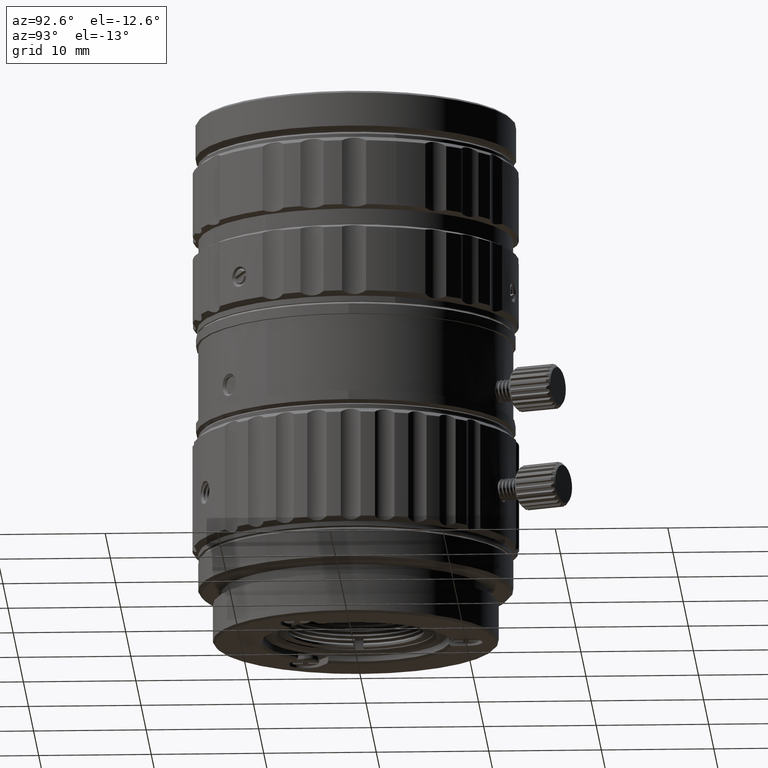
[diagram: clean part render]
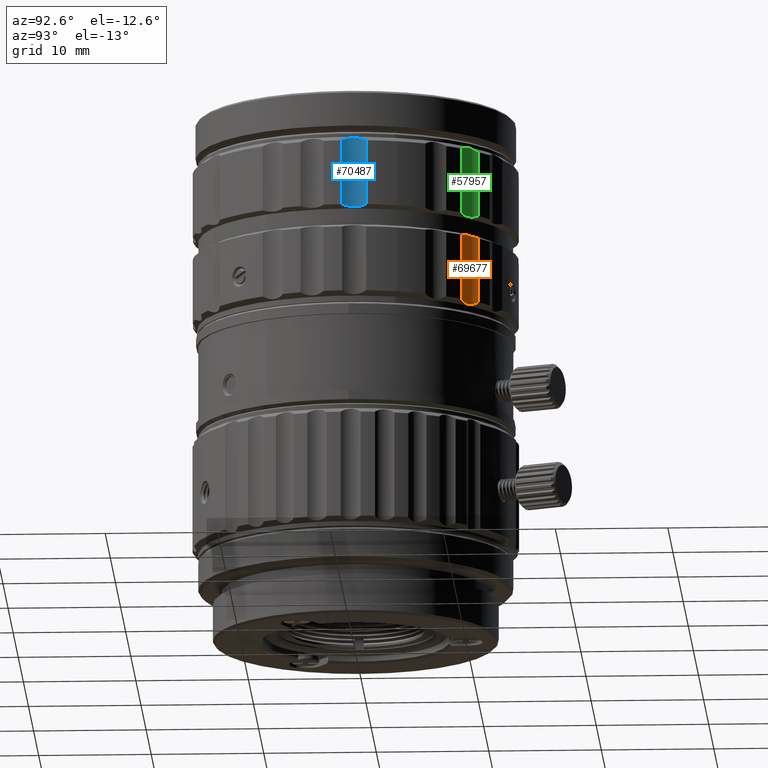
[diagram: same view with three faces highlighted in distinct colors, each labeled with its STEP entity id]
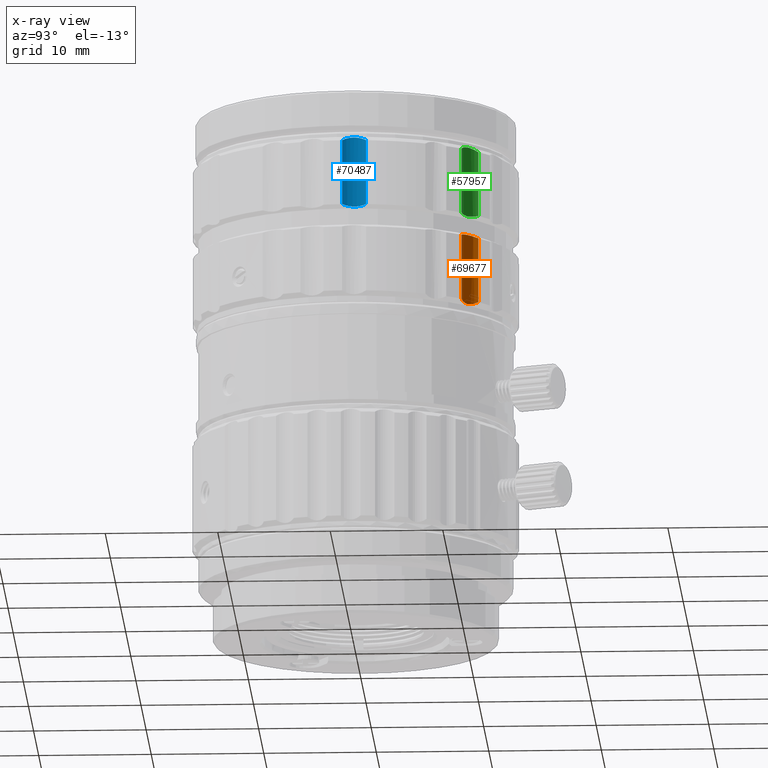
[diagram: x-ray of the same camera — body ghosted, the three highlighted faces saturated]
A machine part, auxiliary view with three faces highlighted in distinct colors.
The next image is the same camera in x-ray (body ghosted, the three faces saturated) — at least one of them is partly hidden behind the body in this view.
Their STEP definitions:

[orange] entity #69677 — the highlighted cylindrical surface (edge-blend (fillet) strip) has radius 2.3 mm, axis along (0, 0, -1).
#324 = VECTOR ( 'NONE', #21218, 1000.000000000000000 ) ;
#2512 = VERTEX_POINT ( 'NONE', #12099 ) ;
#3356 = CARTESIAN_POINT ( 'NONE',  ( 10.64048083858719984, 9.850389206707079737, 27.37993545904980053 ) ) ;
#4376 = CARTESIAN_POINT ( 'NONE',  ( 10.64048083858719984, 9.850389206707079737, 27.37993545904980053 ) ) ;
#5066 = EDGE_CURVE ( 'NONE', #66908, #22117, #49663, .T. ) ;
#8282 = CARTESIAN_POINT ( 'NONE',  ( 9.682695421883179776, 10.38373891436630103, 27.07734155002420096 ) ) ;
#8583 = VERTEX_POINT ( 'NONE', #19116 ) ;
#8626 = CARTESIAN_POINT ( 'NONE',  ( 11.25297294102719903, 12.06733607671860042, 26.97993545905000090 ) ) ;
#11030 = CARTESIAN_POINT ( 'NONE',  ( 10.27357382312537837, 9.951757287441253652, 33.30695144448599621 ) ) ;
#12099 = CARTESIAN_POINT ( 'NONE',  ( 9.084151731427891008, 11.30168957812460029, 27.37993545904990000 ) ) ;
#15153 = CARTESIAN_POINT ( 'NONE',  ( 10.57577800585679917, 9.868265130840519817, 27.34459860099579842 ) ) ;
#15963 = CARTESIAN_POINT ( 'NONE',  ( 9.815930951724949338, 10.26864245110160034, 27.08511752826249719 ) ) ;
#17530 = CARTESIAN_POINT ( 'NONE',  ( 9.944991668092134418, 10.14199976667624981, 33.36463608381595947 ) ) ;
#18327 = CARTESIAN_POINT ( 'NONE',  ( 9.422414956937375408, 10.62970177551355455, 33.36399240107564168 ) ) ;
#19101 = EDGE_CURVE ( 'NONE', #8583, #66908, #54398, .T. ) ;
#19116 = CARTESIAN_POINT ( 'NONE',  ( 9.084151731429479071, 11.30168957812569985, 33.19126032445500130 ) ) ;
#19566 = CARTESIAN_POINT ( 'NONE',  ( 10.64048083858740057, 9.850389206706079648, 33.19126032445500130 ) ) ;
#21218 = DIRECTION ( 'NONE',  ( 1.102461274316499896E-13, -1.078025220529050062E-13, -1.000000000000000000 ) ) ;
#22117 = VERTEX_POINT ( 'NONE', #4376 ) ;
#26455 = ORIENTED_EDGE ( 'NONE', *, *, #5066, .T. ) ;
#30918 = CARTESIAN_POINT ( 'NONE',  ( 9.084151731429479071, 11.30168957812569985, 33.19126032445500130 ) ) ;
#30931 = DIRECTION ( 'NONE',  ( -1.407924342681259986E-13, 1.308450464266729913E-13, -1.000000000000000000 ) ) ;
#31829 = AXIS2_PLACEMENT_3D ( 'NONE', #8626, #45643, #39552 ) ;
#33081 = CARTESIAN_POINT ( 'NONE',  ( 9.084151731427891008, 11.30168957812460029, 27.37993545904990000 ) ) ;
#33468 = CARTESIAN_POINT ( 'NONE',  ( 9.338082928344951128, 10.78897225163550111, 27.14848329727709952 ) ) ;
#33870 = CARTESIAN_POINT ( 'NONE',  ( 9.558840121515839172, 10.50839708561340125, 27.08512906533769993 ) ) ;
#34215 = CARTESIAN_POINT ( 'NONE',  ( 9.084151731427891008, 11.30168957812460029, 33.19126032445500130 ) ) ;
#34670 = CARTESIAN_POINT ( 'NONE',  ( 10.27489818911730168, 9.982868010376130030, 27.20547125498089969 ) ) ;
#39188 = CARTESIAN_POINT ( 'NONE',  ( 10.45011928971669946, 9.909104674780971678, 27.28081095013019919 ) ) ;
#39552 = DIRECTION ( 'NONE',  ( -0.7313537016191790086, 0.6819983600624893727, 0.000000000000000000 ) ) ;
#40788 = CARTESIAN_POINT ( 'NONE',  ( 9.241742386559439026, 10.94635829844849972, 27.20551918695109705 ) ) ;
#41098 = EDGE_CURVE ( 'NONE', #22117, #2512, #69171, .T. ) ;
#45643 = DIRECTION ( 'NONE',  ( 0.000000000000000000, 0.000000000000000000, -1.000000000000000000 ) ) ;
#49313 = ORIENTED_EDGE ( 'NONE', *, *, #79929, .F. ) ;
#49318 = CARTESIAN_POINT ( 'NONE',  ( 10.64048083858759952, 9.850389206707079737, 33.19126032445539920 ) ) ;
#49663 = LINE ( 'NONE', #19566, #56265 ) ;
#52121 = LINE ( 'NONE', #34215, #324 ) ;
#52138 = CYLINDRICAL_SURFACE ( 'NONE', #31829, 2.300000000000001155 ) ;
#52582 = CARTESIAN_POINT ( 'NONE',  ( 9.958624451856751492, 10.16332488302889914, 27.10867727313110009 ) ) ;
#54357 = EDGE_LOOP ( 'NONE', ( #79045, #49313, #73879, #26455 ) ) ;
#54398 = B_SPLINE_CURVE_WITH_KNOTS ( 'NONE', 3,
 ( #30918, #73596, #18327, #17530, #11030, #55730 ),
 .UNSPECIFIED., .F., .F.,
 ( 4, 2, 4 ),
 ( 0.000000000000000000, 0.5000000000000000000, 1.000000000000000000 ),
 .UNSPECIFIED. ) ;
#55730 = CARTESIAN_POINT ( 'NONE',  ( 10.64048083858759952, 9.850389206707079737, 33.19126032445539920 ) ) ;
#56265 = VECTOR ( 'NONE', #30931, 1000.000000000000000 ) ;
#58265 = CARTESIAN_POINT ( 'NONE',  ( 9.156010328406939180, 11.11588027997640005, 27.28081043186589838 ) ) ;
#63966 = CARTESIAN_POINT ( 'NONE',  ( 10.11125096715759852, 10.06795977983290058, 27.14846501295360071 ) ) ;
#65503 = FACE_OUTER_BOUND ( 'NONE', #54357, .T. ) ;
#65543 = CARTESIAN_POINT ( 'NONE',  ( 9.106499227903160687, 11.23838657287500098, 27.34459595104850038 ) ) ;
#66908 = VERTEX_POINT ( 'NONE', #49318 ) ;
#69171 = B_SPLINE_CURVE_WITH_KNOTS ( 'NONE', 3,
 ( #3356, #15153, #39188, #34670, #63966, #52582, #15963, #8282, #33870, #76554, #33468, #40788, #58265, #65543, #33081 ),
 .UNSPECIFIED., .F., .F.,
 ( 4, 1, 1, 1, 1, 1, 1, 1, 1, 1, 1, 1, 4 ),
 ( 0.000000000000000000, 0.08333333333333001192, 0.1666666666667000196, 0.2500000000000000000, 0.3333333333333000081, 0.4166666666666999919, 0.5000000000000000000, 0.5833333333333000637, 0.6666666666667000474, 0.7500000000000000000, 0.8333333333333000637, 0.9166666666667000474, 1.000000000000000000 ),
 .UNSPECIFIED. ) ;
#69677 = ADVANCED_FACE ( 'NONE', ( #65503 ), #52138, .F. ) ;
#73596 = CARTESIAN_POINT ( 'NONE',  ( 9.210161124728857729, 10.94474698739453444, 33.30630695794172169 ) ) ;
#73879 = ORIENTED_EDGE ( 'NONE', *, *, #19101, .T. ) ;
#76554 = CARTESIAN_POINT ( 'NONE',  ( 9.443696458793889192, 10.64356703812390137, 27.10873156884839830 ) ) ;
#79045 = ORIENTED_EDGE ( 'NONE', *, *, #41098, .T. ) ;
#79929 = EDGE_CURVE ( 'NONE', #8583, #2512, #52121, .T. ) ;

[blue] entity #70487 — the highlighted cylindrical surface (edge-blend (fillet) strip) has radius 2.3 mm, axis along (0, 0, -1).
#535 = ORIENTED_EDGE ( 'NONE', *, *, #61658, .T. ) ;
#764 = AXIS2_PLACEMENT_3D ( 'NONE', #11205, #29522, #5102 ) ;
#2420 = CARTESIAN_POINT ( 'NONE',  ( 14.41496663017789892, 1.568036048931160220, 41.02993545905000161 ) ) ;
#4594 = EDGE_CURVE ( 'NONE', #22923, #29039, #23346, .T. ) ;
#5102 = DIRECTION ( 'NONE',  ( -0.03489949670256017877, 0.9993908270190936527, 0.000000000000000000 ) ) ;
#9724 = CARTESIAN_POINT ( 'NONE',  ( 14.22836552649909869, 0.1447506769504549873, 41.30119491613999827 ) ) ;
#11205 = CARTESIAN_POINT ( 'NONE',  ( 16.48994864581140263, 0.5758416955910711232, 26.97993545905000090 ) ) ;
#14169 = CARTESIAN_POINT ( 'NONE',  ( 14.25075743154290819, 1.224624364695070300, 35.10291947361257314 ) ) ;
#15912 = DIRECTION ( 'NONE',  ( 1.497565831426580161E-15, 1.232456134289549750E-13, -1.000000000000000000 ) ) ;
#16621 = CARTESIAN_POINT ( 'NONE',  ( 14.27514719506169882, 1.205359040622950184, 41.20434624504999732 ) ) ;
#21544 = ORIENTED_EDGE ( 'NONE', *, *, #53015, .F. ) ;
#22018 = CARTESIAN_POINT ( 'NONE',  ( 14.41496663017789892, 1.568036048931160220, 41.02993545905000161 ) ) ;
#22336 = CARTESIAN_POINT ( 'NONE',  ( 14.26886209591630106, -0.03062965023041040388, 41.26140047756999962 ) ) ;
#22923 = VERTEX_POINT ( 'NONE', #51336 ) ;
#23346 = LINE ( 'NONE', #61106, #77160 ) ;
#26401 = CARTESIAN_POINT ( 'NONE',  ( 14.17876596361181818, 0.8518299682009011775, 35.04523483428253883 ) ) ;
#27255 = CARTESIAN_POINT ( 'NONE',  ( 14.33438993421590091, 1.385832738972629929, 41.12906226247999797 ) ) ;
#29039 = VERTEX_POINT ( 'NONE', #30685 ) ;
#29522 = DIRECTION ( 'NONE',  ( 0.000000000000000000, 0.000000000000000000, -1.000000000000000000 ) ) ;
#30685 = CARTESIAN_POINT ( 'NONE',  ( 14.48923316144290041, -0.5586791506662890372, 35.21861059364499624 ) ) ;
#34942 = CARTESIAN_POINT ( 'NONE',  ( 14.45611972554960190, -0.5002839575299979913, 41.06527425011000076 ) ) ;
#35342 = CARTESIAN_POINT ( 'NONE',  ( 14.32439474621789977, -0.2064695421060490088, 41.20440906926999958 ) ) ;
#39399 = CARTESIAN_POINT ( 'NONE',  ( 14.48923316144290041, -0.5586791506662890372, 35.21861059364499624 ) ) ;
#39862 = CARTESIAN_POINT ( 'NONE',  ( 14.38600543535469889, 1.507469328088880012, 41.06527652516999893 ) ) ;
#40550 = FACE_OUTER_BOUND ( 'NONE', #41361, .T. ) ;
#41061 = CARTESIAN_POINT ( 'NONE',  ( 14.18910912904199861, 0.4957797440475459338, 41.33252973977000266 ) ) ;
#41361 = EDGE_LOOP ( 'NONE', ( #66626, #63285, #535, #21544 ) ) ;
#41448 = CARTESIAN_POINT ( 'NONE',  ( 14.23198486560460019, 1.025966499392370057, 41.26137744490999637 ) ) ;
#45255 = VERTEX_POINT ( 'NONE', #67662 ) ;
#45958 = CARTESIAN_POINT ( 'NONE',  ( 14.39614169956539946, -0.3825489035556020045, 41.12906385855999503 ) ) ;
#47558 = CARTESIAN_POINT ( 'NONE',  ( 14.48923316144450091, -0.5586791506630810478, 41.02993545905000161 ) ) ;
#48325 = B_SPLINE_CURVE_WITH_KNOTS ( 'NONE', 3,
 ( #39399, #70249, #77170, #26401, #14169, #70654 ),
 .UNSPECIFIED., .F., .F.,
 ( 4, 2, 4 ),
 ( 0.000000000000000000, 0.5000000000000000000, 1.000000000000000000 ),
 .UNSPECIFIED. ) ;
#51336 = CARTESIAN_POINT ( 'NONE',  ( 14.48923316144450091, -0.5586791506630810478, 41.02993545905000161 ) ) ;
#53015 = EDGE_CURVE ( 'NONE', #45255, #64611, #59399, .T. ) ;
#53931 = CYLINDRICAL_SURFACE ( 'NONE', #764, 2.300000000000000711 ) ;
#57933 = EDGE_CURVE ( 'NONE', #22923, #45255, #65315, .T. ) ;
#59399 = LINE ( 'NONE', #22018, #69012 ) ;
#61106 = CARTESIAN_POINT ( 'NONE',  ( 14.48923316144450091, -0.5586791506630810478, 41.02993545905000161 ) ) ;
#61658 = EDGE_CURVE ( 'NONE', #29039, #64611, #48325, .T. ) ;
#63285 = ORIENTED_EDGE ( 'NONE', *, *, #4594, .T. ) ;
#64611 = VERTEX_POINT ( 'NONE', #65289 ) ;
#65289 = CARTESIAN_POINT ( 'NONE',  ( 14.41496663017830038, 1.568036048931810145, 35.21861059364389490 ) ) ;
#65315 = B_SPLINE_CURVE_WITH_KNOTS ( 'NONE', 3,
 ( #47558, #34942, #45958, #35342, #22336, #9724, #71107, #41061, #77225, #76823, #41448, #16621, #27255, #39862, #2420 ),
 .UNSPECIFIED., .F., .F.,
 ( 4, 1, 1, 1, 1, 1, 1, 1, 1, 1, 1, 1, 4 ),
 ( 0.000000000000000000, 0.08333333333333001192, 0.1666666666667000196, 0.2500000000000000000, 0.3333333333333000081, 0.4166666666666999919, 0.5000000000000000000, 0.5833333333333000637, 0.6666666666667000474, 0.7500000000000000000, 0.8333333333333000637, 0.9166666666667000474, 1.000000000000000000 ),
 .UNSPECIFIED. ) ;
#66626 = ORIENTED_EDGE ( 'NONE', *, *, #57933, .F. ) ;
#67599 = DIRECTION ( 'NONE',  ( 1.859312912602910082E-14, 1.069147774575079981E-13, -1.000000000000000000 ) ) ;
#67662 = CARTESIAN_POINT ( 'NONE',  ( 14.41496663017789892, 1.568036048931160220, 41.02993545905000161 ) ) ;
#69012 = VECTOR ( 'NONE', #15912, 1000.000000000000000 ) ;
#70249 = CARTESIAN_POINT ( 'NONE',  ( 14.30251476883396045, -0.2294032448654683420, 35.10356396015728109 ) ) ;
#70487 = ADVANCED_FACE ( 'NONE', ( #40550 ), #53931, .F. ) ;
#70654 = CARTESIAN_POINT ( 'NONE',  ( 14.41496663017830038, 1.568036048931810145, 35.21861059364389490 ) ) ;
#71107 = CARTESIAN_POINT ( 'NONE',  ( 14.20193689138890036, 0.3201164021977939700, 41.32475469529999401 ) ) ;
#76823 = CARTESIAN_POINT ( 'NONE',  ( 14.20384828525530096, 0.8485071024703519926, 41.30112716319000299 ) ) ;
#77160 = VECTOR ( 'NONE', #67599, 1000.000000000000000 ) ;
#77170 = CARTESIAN_POINT ( 'NONE',  ( 14.20399817228276440, 0.1374750115335070244, 35.04587851702285661 ) ) ;
#77225 = CARTESIAN_POINT ( 'NONE',  ( 14.18968086976239817, 0.6714686928020489054, 41.32473903230000190 ) ) ;

[green] entity #57957 — the highlighted cylindrical surface (edge-blend (fillet) strip) has radius 2.3 mm, axis along (0, 0, -1).
#126 = CARTESIAN_POINT ( 'NONE',  ( 9.156012599333879010, 11.11587605397689948, 41.12906226247000063 ) ) ;
#3240 = ORIENTED_EDGE ( 'NONE', *, *, #30141, .F. ) ;
#10848 = CARTESIAN_POINT ( 'NONE',  ( 10.11126758121720037, 10.06795071446050116, 41.26140047756999962 ) ) ;
#10880 = CARTESIAN_POINT ( 'NONE',  ( 9.084151731429209065, 11.30168957812569985, 35.21861059364459834 ) ) ;
#12334 = CARTESIAN_POINT ( 'NONE',  ( 9.241735832674200068, 10.94637093545409989, 41.20434624504999732 ) ) ;
#14158 = VERTEX_POINT ( 'NONE', #36163 ) ;
#15736 = LINE ( 'NONE', #27573, #48165 ) ;
#16656 = LINE ( 'NONE', #66634, #51191 ) ;
#17082 = VERTEX_POINT ( 'NONE', #38340 ) ;
#17415 = DIRECTION ( 'NONE',  ( -0.7313537016191790086, 0.6819983600624893727, 0.000000000000000000 ) ) ;
#17772 = CARTESIAN_POINT ( 'NONE',  ( 10.64048083858829941, 9.850389206706680056, 35.21861059364469781 ) ) ;
#18297 = CARTESIAN_POINT ( 'NONE',  ( 10.64048083858829941, 9.850389206706680056, 35.21861059364469781 ) ) ;
#18620 = CARTESIAN_POINT ( 'NONE',  ( 11.25297294102719903, 12.06733607671860042, 26.97993545905000090 ) ) ;
#18857 = CARTESIAN_POINT ( 'NONE',  ( 9.815929403124638242, 10.26864236065449987, 41.32475469529999401 ) ) ;
#22670 = CARTESIAN_POINT ( 'NONE',  ( 10.57577446646459940, 9.868266108691880589, 41.06527425011000076 ) ) ;
#24962 = CARTESIAN_POINT ( 'NONE',  ( 9.084151731427891008, 11.30168957812460029, 41.02993545905000161 ) ) ;
#27573 = CARTESIAN_POINT ( 'NONE',  ( 9.084151731427891008, 11.30168957812460029, 41.02993545905000161 ) ) ;
#27634 = VERTEX_POINT ( 'NONE', #18297 ) ;
#28048 = ORIENTED_EDGE ( 'NONE', *, *, #43871, .T. ) ;
#29240 = DIRECTION ( 'NONE',  ( 0.000000000000000000, 0.000000000000000000, -1.000000000000000000 ) ) ;
#30141 = EDGE_CURVE ( 'NONE', #58993, #17082, #63778, .T. ) ;
#32140 = EDGE_CURVE ( 'NONE', #17082, #14158, #15736, .T. ) ;
#34868 = CARTESIAN_POINT ( 'NONE',  ( 10.45011234252270071, 9.909106494850519198, 41.12906385855999503 ) ) ;
#35740 = CYLINDRICAL_SURFACE ( 'NONE', #48624, 2.300000000000001155 ) ;
#36163 = CARTESIAN_POINT ( 'NONE',  ( 9.084151731429209065, 11.30168957812569985, 35.21861059364459834 ) ) ;
#38340 = CARTESIAN_POINT ( 'NONE',  ( 9.084151731427891008, 11.30168957812460029, 41.02993545905000161 ) ) ;
#38486 = ORIENTED_EDGE ( 'NONE', *, *, #61393, .T. ) ;
#40754 = EDGE_LOOP ( 'NONE', ( #3240, #38486, #28048, #48357 ) ) ;
#42203 = CARTESIAN_POINT ( 'NONE',  ( 9.210867024232952005, 10.94274740949657065, 35.10291947358870601 ) ) ;
#43871 = EDGE_CURVE ( 'NONE', #27634, #14158, #56196, .T. ) ;
#47878 = CARTESIAN_POINT ( 'NONE',  ( 10.64048083858740057, 9.850389206706079648, 41.02993545905000161 ) ) ;
#48165 = VECTOR ( 'NONE', #64142, 1000.000000000000000 ) ;
#48357 = ORIENTED_EDGE ( 'NONE', *, *, #32140, .F. ) ;
#48624 = AXIS2_PLACEMENT_3D ( 'NONE', #18620, #29240, #17415 ) ;
#51191 = VECTOR ( 'NONE', #71539, 1000.000000000000000 ) ;
#54004 = CARTESIAN_POINT ( 'NONE',  ( 9.423566814853767681, 10.62823630860787638, 35.04523483425869301 ) ) ;
#55846 = CARTESIAN_POINT ( 'NONE',  ( 9.338065139218139521, 10.78900087720490042, 41.26137744489999903 ) ) ;
#56196 = B_SPLINE_CURVE_WITH_KNOTS ( 'NONE', 3,
 ( #17772, #78380, #60067, #54004, #42203, #10880 ),
 .UNSPECIFIED., .F., .F.,
 ( 4, 2, 4 ),
 ( 0.000000000000000000, 0.5000000000000000000, 1.000000000000000000 ),
 .UNSPECIFIED. ) ;
#57957 = ADVANCED_FACE ( 'NONE', ( #74276 ), #35740, .F. ) ;
#58993 = VERTEX_POINT ( 'NONE', #69120 ) ;
#60067 = CARTESIAN_POINT ( 'NONE',  ( 9.946533914619649863, 10.14095294054435570, 35.04587851704965118 ) ) ;
#60433 = CARTESIAN_POINT ( 'NONE',  ( 9.106500213197980642, 11.23838378184840003, 41.06527652516999893 ) ) ;
#61393 = EDGE_CURVE ( 'NONE', #58993, #27634, #16656, .T. ) ;
#61918 = CARTESIAN_POINT ( 'NONE',  ( 9.558819499841639811, 10.50841963191830075, 41.32473903230000190 ) ) ;
#63778 = B_SPLINE_CURVE_WITH_KNOTS ( 'NONE', 3,
 ( #47878, #22670, #34868, #71838, #10848, #66130, #18857, #68420, #61918, #72623, #55846, #12334, #126, #60433, #24962 ),
 .UNSPECIFIED., .F., .F.,
 ( 4, 1, 1, 1, 1, 1, 1, 1, 1, 1, 1, 1, 4 ),
 ( 0.000000000000000000, 0.08333333333333001192, 0.1666666666667000196, 0.2500000000000000000, 0.3333333333333000081, 0.4166666666666999919, 0.5000000000000000000, 0.5833333333333000637, 0.6666666666667000474, 0.7500000000000000000, 0.8333333333333000637, 0.9166666666667000474, 1.000000000000000000 ),
 .UNSPECIFIED. ) ;
#64142 = DIRECTION ( 'NONE',  ( -1.279969268332020022E-13, 1.219452551844599919E-13, -1.000000000000000000 ) ) ;
#66130 = CARTESIAN_POINT ( 'NONE',  ( 9.958619563731629043, 10.16332793424560066, 41.30119491613999827 ) ) ;
#66634 = CARTESIAN_POINT ( 'NONE',  ( 10.64048083858740057, 9.850389206706079648, 41.02993545905000161 ) ) ;
#68420 = CARTESIAN_POINT ( 'NONE',  ( 9.682646065151839565, 10.38378450313869905, 41.33252973976000533 ) ) ;
#69120 = CARTESIAN_POINT ( 'NONE',  ( 10.64048083858740057, 9.850389206706079648, 41.02993545905000161 ) ) ;
#71539 = DIRECTION ( 'NONE',  ( 1.116302167707700012E-13, -9.900949795368211520E-14, -1.000000000000000000 ) ) ;
#71838 = CARTESIAN_POINT ( 'NONE',  ( 10.27487267477409993, 9.982880648116680078, 41.20440906925999514 ) ) ;
#72623 = CARTESIAN_POINT ( 'NONE',  ( 9.443652315407549125, 10.64362256749689983, 41.30112716319000299 ) ) ;
#74276 = FACE_OUTER_BOUND ( 'NONE', #40754, .T. ) ;
#78380 = CARTESIAN_POINT ( 'NONE',  ( 10.27561777121481157, 9.951192590975207253, 35.10356396018367775 ) ) ;